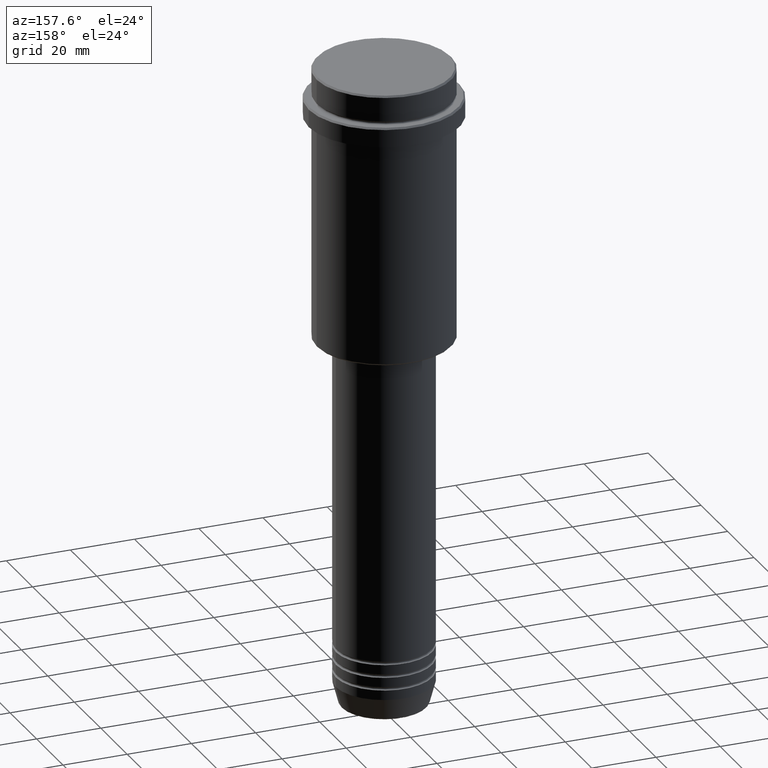
[diagram: clean part render]
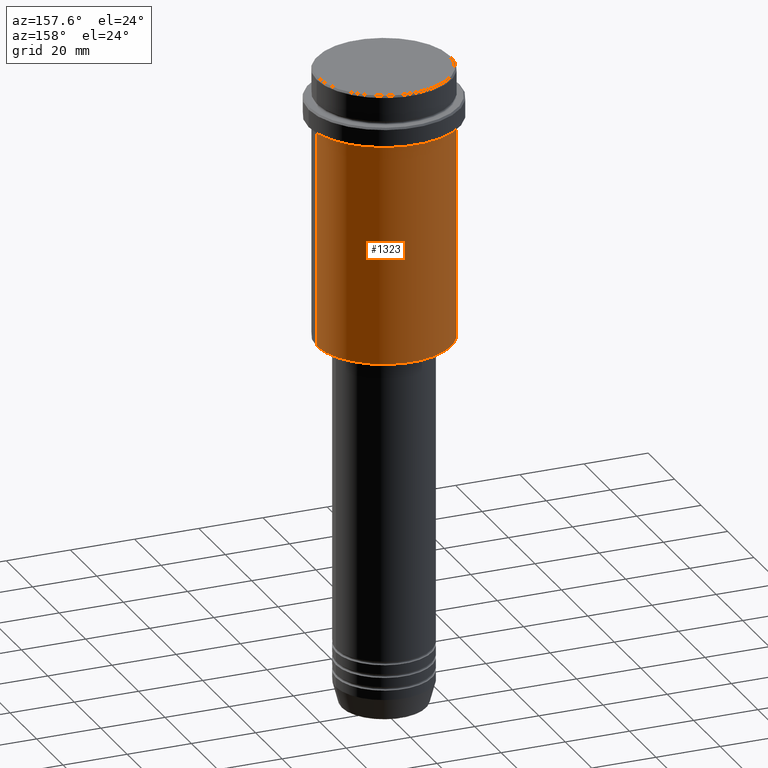
[diagram: same view with one face highlighted and labeled with its STEP entity id]
A machine part, auxiliary view. The second image highlights one B-rep face of the part: STEP entity #1323.
In plain terms, the highlighted cylindrical surface (partial cylindrical patch) has radius 21 mm, axis along (-0, -0, 1).
Its self-contained STEP definition (entity closure, byte-faithful):
#16 = CARTESIAN_POINT ( 'NONE',  ( 21.00000000000000000, 0.000000000000000000, 0.000000000000000000 ) ) ;
#46 = DIRECTION ( 'NONE',  ( -0.000000000000000000, -0.000000000000000000, 1.000000000000000000 ) ) ;
#67 = VERTEX_POINT ( 'NONE', #338 ) ;
#145 = LINE ( 'NONE', #994, #1074 ) ;
#279 = DIRECTION ( 'NONE',  ( -0.000000000000000000, -0.000000000000000000, 1.000000000000000000 ) ) ;
#338 = CARTESIAN_POINT ( 'NONE',  ( 21.00000000000000000, 0.000000000000000000, -84.49999999999997158 ) ) ;
#351 = AXIS2_PLACEMENT_3D ( 'NONE', #1212, #1406, #779 ) ;
#385 = CARTESIAN_POINT ( 'NONE',  ( 0.000000000000000000, 0.000000000000000000, -16.00000000000000355 ) ) ;
#392 = CYLINDRICAL_SURFACE ( 'NONE', #1254, 21.00000000000000000 ) ;
#480 = CARTESIAN_POINT ( 'NONE',  ( -21.00000000000000000, 2.571758278209441661E-15, -84.49999999999997158 ) ) ;
#505 = EDGE_CURVE ( 'NONE', #67, #1177, #940, .T. ) ;
#603 = DIRECTION ( 'NONE',  ( 1.000000000000000000, 0.000000000000000000, 0.000000000000000000 ) ) ;
#620 = CARTESIAN_POINT ( 'NONE',  ( 21.00000000000000000, 0.000000000000000000, -16.00000000000000355 ) ) ;
#635 = EDGE_CURVE ( 'NONE', #1177, #1111, #145, .T. ) ;
#779 = DIRECTION ( 'NONE',  ( -1.000000000000000000, 0.000000000000000000, 0.000000000000000000 ) ) ;
#815 = ORIENTED_EDGE ( 'NONE', *, *, #635, .T. ) ;
#847 = VERTEX_POINT ( 'NONE', #620 ) ;
#902 = ORIENTED_EDGE ( 'NONE', *, *, #1167, .F. ) ;
#926 = ORIENTED_EDGE ( 'NONE', *, *, #505, .T. ) ;
#927 = FACE_OUTER_BOUND ( 'NONE', #1359, .T. ) ;
#940 = CIRCLE ( 'NONE', #351, 21.00000000000000000 ) ;
#948 = DIRECTION ( 'NONE',  ( -0.000000000000000000, -0.000000000000000000, 1.000000000000000000 ) ) ;
#957 = CIRCLE ( 'NONE', #1302, 21.00000000000000000 ) ;
#994 = CARTESIAN_POINT ( 'NONE',  ( -21.00000000000000000, 2.571758278209441661E-15, 0.000000000000000000 ) ) ;
#1020 = DIRECTION ( 'NONE',  ( -0.000000000000000000, -0.000000000000000000, 1.000000000000000000 ) ) ;
#1074 = VECTOR ( 'NONE', #1020, 1000.000000000000000 ) ;
#1111 = VERTEX_POINT ( 'NONE', #1125 ) ;
#1125 = CARTESIAN_POINT ( 'NONE',  ( -21.00000000000000000, 2.571758278209441661E-15, -16.00000000000000355 ) ) ;
#1167 = EDGE_CURVE ( 'NONE', #67, #847, #1209, .T. ) ;
#1169 = DIRECTION ( 'NONE',  ( 1.000000000000000000, 0.000000000000000000, 0.000000000000000000 ) ) ;
#1177 = VERTEX_POINT ( 'NONE', #480 ) ;
#1209 = LINE ( 'NONE', #16, #1372 ) ;
#1212 = CARTESIAN_POINT ( 'NONE',  ( 0.000000000000000000, 0.000000000000000000, -84.49999999999997158 ) ) ;
#1249 = CARTESIAN_POINT ( 'NONE',  ( 0.000000000000000000, 0.000000000000000000, 0.000000000000000000 ) ) ;
#1254 = AXIS2_PLACEMENT_3D ( 'NONE', #1249, #279, #603 ) ;
#1284 = EDGE_CURVE ( 'NONE', #847, #1111, #957, .T. ) ;
#1302 = AXIS2_PLACEMENT_3D ( 'NONE', #385, #948, #1169 ) ;
#1317 = ORIENTED_EDGE ( 'NONE', *, *, #1284, .F. ) ;
#1323 = ADVANCED_FACE ( 'NONE', ( #927 ), #392, .T. ) ;
#1359 = EDGE_LOOP ( 'NONE', ( #926, #815, #1317, #902 ) ) ;
#1372 = VECTOR ( 'NONE', #46, 1000.000000000000000 ) ;
#1406 = DIRECTION ( 'NONE',  ( -0.000000000000000000, -0.000000000000000000, 1.000000000000000000 ) ) ;